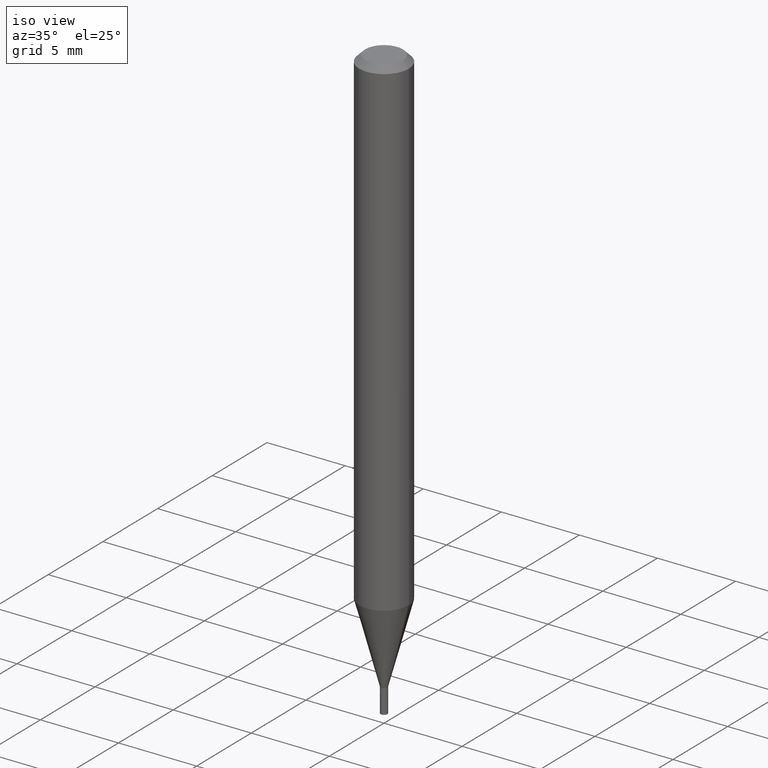
[diagram: clean part render]
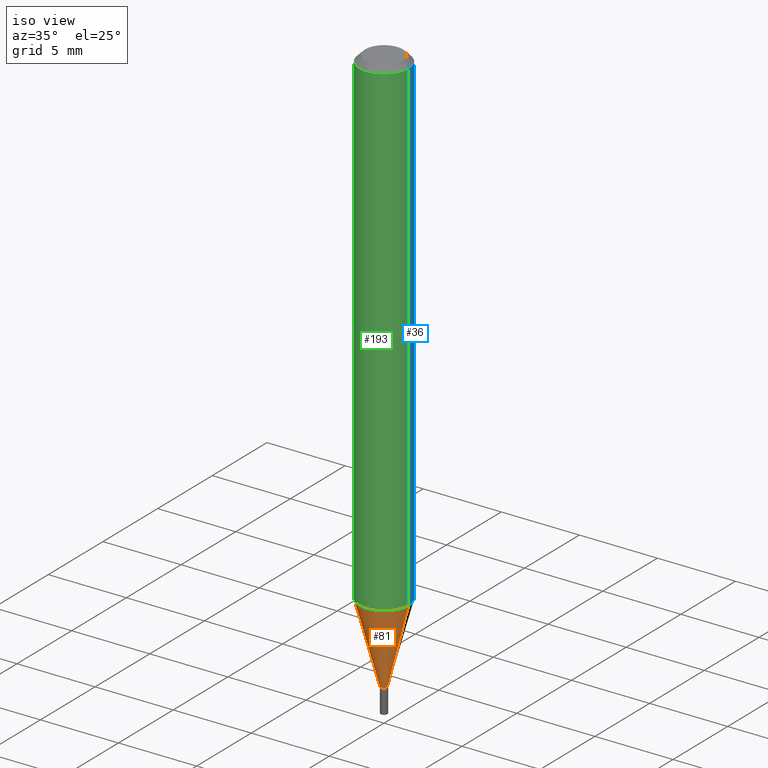
[diagram: same view with three faces highlighted in distinct colors, each labeled with its STEP entity id]
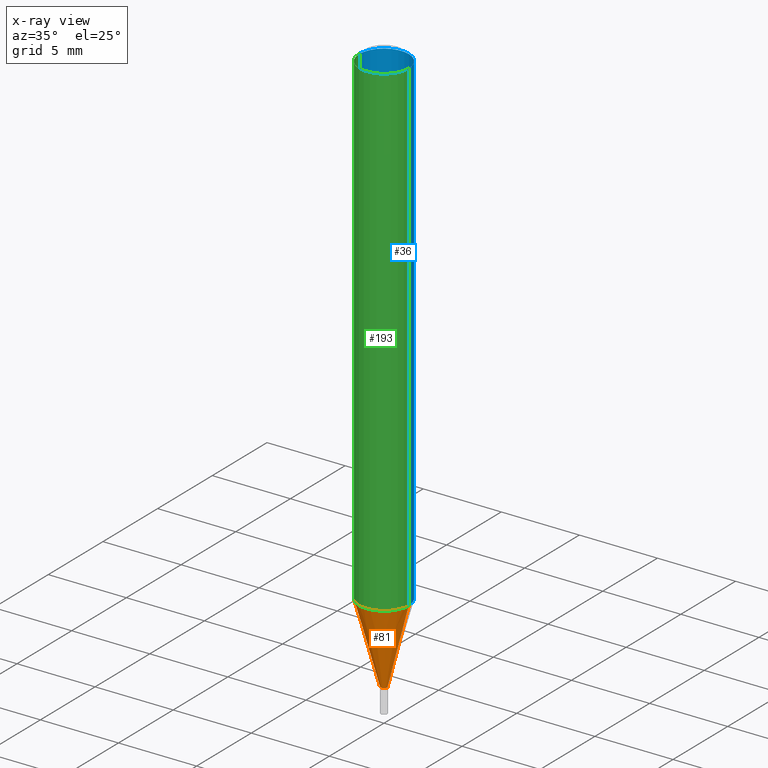
[diagram: x-ray of the same camera — body ghosted, the three highlighted faces saturated]
A machine part, iso view with three faces highlighted in distinct colors.
The next image is the same camera in x-ray (body ghosted, the three faces saturated) — at least one of them is partly hidden behind the body in this view.
Their STEP definitions:

[orange] entity #81 — the highlighted conical surface has half-angle 15 deg.
#11 = CIRCLE ( 'NONE', #381, 0.008499999999999922548 ) ;
#26 = VERTEX_POINT ( 'NONE', #272 ) ;
#46 = VERTEX_POINT ( 'NONE', #67 ) ;
#50 = EDGE_CURVE ( 'NONE', #26, #46, #407, .T. ) ;
#56 = CARTESIAN_POINT ( 'NONE',  ( -0.008499999999999922548, -4.963845514055678678E-15, -1.439000000000000057 ) ) ;
#67 = CARTESIAN_POINT ( 'NONE',  ( 0.06249999999999999306, -4.757035983437653502E-15, -1.237469256391281025 ) ) ;
#69 = LINE ( 'NONE', #160, #85 ) ;
#81 = ADVANCED_FACE ( 'NONE', ( #143 ), #258, .T. ) ;
#85 = VECTOR ( 'NONE', #215, 39.37007874015747433 ) ;
#86 = LINE ( 'NONE', #56, #370 ) ;
#110 = CARTESIAN_POINT ( 'NONE',  ( -0.008499999999999922548, -4.420178560143938947E-15, -1.439000000000000057 ) ) ;
#138 = ORIENTED_EDGE ( 'NONE', *, *, #195, .T. ) ;
#143 = FACE_OUTER_BOUND ( 'NONE', #373, .T. ) ;
#146 = DIRECTION ( 'NONE',  ( -0.2588190451025214611, 5.211531920934551042E-15, 0.9659258262890682012 ) ) ;
#149 = ORIENTED_EDGE ( 'NONE', *, *, #243, .T. ) ;
#160 = CARTESIAN_POINT ( 'NONE',  ( 0.008499999999999922548, -5.083596829355619552E-15, -1.439000000000000057 ) ) ;
#170 = AXIS2_PLACEMENT_3D ( 'NONE', #453, #177, #308 ) ;
#177 = DIRECTION ( 'NONE',  ( -2.445468806185136597E-29, 3.491481338843145583E-15, 1.000000000000000000 ) ) ;
#195 = EDGE_CURVE ( 'NONE', #217, #205, #11, .T. ) ;
#205 = VERTEX_POINT ( 'NONE', #433 ) ;
#208 = CARTESIAN_POINT ( 'NONE',  ( 3.519029612100411702E-29, -5.024241646595286853E-15, -1.439000000000000057 ) ) ;
#215 = DIRECTION ( 'NONE',  ( 0.2588190451025214611, 1.565188264969621573E-15, 0.9659258262890682012 ) ) ;
#217 = VERTEX_POINT ( 'NONE', #110 ) ;
#234 = ORIENTED_EDGE ( 'NONE', *, *, #335, .F. ) ;
#240 = DIRECTION ( 'NONE',  ( -2.445468806185136597E-29, 3.491481338843145583E-15, 1.000000000000000000 ) ) ;
#243 = EDGE_CURVE ( 'NONE', #205, #46, #69, .T. ) ;
#258 = CONICAL_SURFACE ( 'NONE', #360, 0.008499999999999922548, 0.2617993877991501295 ) ;
#272 = CARTESIAN_POINT ( 'NONE',  ( -0.06249999999999999306, -3.876511606232199217E-15, -1.237469256391281025 ) ) ;
#278 = DIRECTION ( 'NONE',  ( 1.000000000000000000, -6.982962677686225690E-15, 0.000000000000000000 ) ) ;
#290 = DIRECTION ( 'NONE',  ( 1.000000000000000000, -6.982962677686225690E-15, 0.000000000000000000 ) ) ;
#308 = DIRECTION ( 'NONE',  ( 1.000000000000000000, -6.982962677686262766E-15, 0.000000000000000000 ) ) ;
#317 = DIRECTION ( 'NONE',  ( -2.445468806185136597E-29, 3.491481338843145583E-15, 1.000000000000000000 ) ) ;
#335 = EDGE_CURVE ( 'NONE', #217, #26, #86, .T. ) ;
#360 = AXIS2_PLACEMENT_3D ( 'NONE', #208, #240, #278 ) ;
#370 = VECTOR ( 'NONE', #146, 39.37007874015747433 ) ;
#373 = EDGE_LOOP ( 'NONE', ( #234, #138, #149, #395 ) ) ;
#381 = AXIS2_PLACEMENT_3D ( 'NONE', #462, #317, #290 ) ;
#395 = ORIENTED_EDGE ( 'NONE', *, *, #50, .F. ) ;
#407 = CIRCLE ( 'NONE', #170, 0.06250000000000000000 ) ;
#433 = CARTESIAN_POINT ( 'NONE',  ( 0.008499999999999922548, -5.083596829355619552E-15, -1.439000000000000057 ) ) ;
#453 = CARTESIAN_POINT ( 'NONE',  ( 3.026192465117994899E-29, -4.320600816082261833E-15, -1.237469256391281025 ) ) ;
#462 = CARTESIAN_POINT ( 'NONE',  ( 3.519029612100411702E-29, -5.024241646595286853E-15, -1.439000000000000057 ) ) ;

[blue] entity #36 — the highlighted cylindrical surface (edge-blend (fillet) strip) has radius 1.5875 mm, axis along (-0, 0, 1).
#1 = ORIENTED_EDGE ( 'NONE', *, *, #111, .T. ) ;
#13 = EDGE_CURVE ( 'NONE', #108, #284, #264, .T. ) ;
#26 = VERTEX_POINT ( 'NONE', #272 ) ;
#27 = LINE ( 'NONE', #134, #130 ) ;
#28 = EDGE_CURVE ( 'NONE', #46, #26, #129, .T. ) ;
#29 = AXIS2_PLACEMENT_3D ( 'NONE', #375, #100, #64 ) ;
#36 = ADVANCED_FACE ( 'NONE', ( #63 ), #417, .T. ) ;
#46 = VERTEX_POINT ( 'NONE', #67 ) ;
#59 = CARTESIAN_POINT ( 'NONE',  ( 3.668203209277705088E-31, -5.237222008264718399E-17, -0.01499999999999999944 ) ) ;
#61 = AXIS2_PLACEMENT_3D ( 'NONE', #59, #95, #422 ) ;
#63 = FACE_OUTER_BOUND ( 'NONE', #158, .T. ) ;
#64 = DIRECTION ( 'NONE',  ( 1.000000000000000000, -6.982962677686266711E-15, 4.876176775795935793E-29 ) ) ;
#67 = CARTESIAN_POINT ( 'NONE',  ( 0.06249999999999999306, -4.757035983437653502E-15, -1.237469256391281025 ) ) ;
#73 = ORIENTED_EDGE ( 'NONE', *, *, #128, .F. ) ;
#77 = CARTESIAN_POINT ( 'NONE',  ( -0.06250000000000000000, -1.742397308232391840E-15, -0.01499999999999999944 ) ) ;
#95 = DIRECTION ( 'NONE',  ( -2.445468806185136597E-29, 3.491481338843145583E-15, 1.000000000000000000 ) ) ;
#100 = DIRECTION ( 'NONE',  ( -2.445468806185136597E-29, 3.491481338843145583E-15, 1.000000000000000000 ) ) ;
#108 = VERTEX_POINT ( 'NONE', #201 ) ;
#111 = EDGE_CURVE ( 'NONE', #26, #284, #140, .T. ) ;
#128 = EDGE_CURVE ( 'NONE', #46, #108, #27, .T. ) ;
#129 = CIRCLE ( 'NONE', #380, 0.06250000000000000000 ) ;
#130 = VECTOR ( 'NONE', #269, 39.37007874015748143 ) ;
#134 = CARTESIAN_POINT ( 'NONE',  ( 0.06250000000000000000, -4.364351673553916694E-16, 3.047610484872459871E-30 ) ) ;
#140 = LINE ( 'NONE', #314, #447 ) ;
#158 = EDGE_LOOP ( 'NONE', ( #315, #1, #429, #73 ) ) ;
#201 = CARTESIAN_POINT ( 'NONE',  ( 0.06250000000000000000, -4.888073874380388472E-16, -0.01499999999999999944 ) ) ;
#203 = CARTESIAN_POINT ( 'NONE',  ( 3.026192465117994899E-29, -4.320600816082261833E-15, -1.237469256391281025 ) ) ;
#210 = DIRECTION ( 'NONE',  ( -2.445468806185136877E-29, 3.491481338843145188E-15, 1.000000000000000000 ) ) ;
#232 = DIRECTION ( 'NONE',  ( -2.445468806185136597E-29, 3.491481338843145583E-15, 1.000000000000000000 ) ) ;
#264 = CIRCLE ( 'NONE', #61, 0.06250000000000000000 ) ;
#269 = DIRECTION ( 'NONE',  ( -2.445468806185136877E-29, 3.491481338843145188E-15, 1.000000000000000000 ) ) ;
#272 = CARTESIAN_POINT ( 'NONE',  ( -0.06249999999999999306, -3.876511606232199217E-15, -1.237469256391281025 ) ) ;
#284 = VERTEX_POINT ( 'NONE', #77 ) ;
#314 = CARTESIAN_POINT ( 'NONE',  ( -0.06250000000000000000, 4.440892098500626162E-16, -3.074334431409316114E-30 ) ) ;
#315 = ORIENTED_EDGE ( 'NONE', *, *, #28, .T. ) ;
#375 = CARTESIAN_POINT ( 'NONE',  ( 0.000000000000000000, 0.000000000000000000, 0.000000000000000000 ) ) ;
#380 = AXIS2_PLACEMENT_3D ( 'NONE', #203, #232, #419 ) ;
#417 = CYLINDRICAL_SURFACE ( 'NONE', #29, 0.06250000000000000000 ) ;
#419 = DIRECTION ( 'NONE',  ( 1.000000000000000000, -6.982962677686262766E-15, 0.000000000000000000 ) ) ;
#422 = DIRECTION ( 'NONE',  ( 1.000000000000000000, -6.982962677686266711E-15, 0.000000000000000000 ) ) ;
#429 = ORIENTED_EDGE ( 'NONE', *, *, #13, .F. ) ;
#447 = VECTOR ( 'NONE', #210, 39.37007874015748143 ) ;

[green] entity #193 — the highlighted cylindrical surface (edge-blend (fillet) strip) has radius 1.5875 mm, axis along (-0, 0, 1).
#18 = CARTESIAN_POINT ( 'NONE',  ( 3.668203209277705088E-31, -5.237222008264718399E-17, -0.01499999999999999944 ) ) ;
#26 = VERTEX_POINT ( 'NONE', #272 ) ;
#27 = LINE ( 'NONE', #134, #130 ) ;
#46 = VERTEX_POINT ( 'NONE', #67 ) ;
#50 = EDGE_CURVE ( 'NONE', #26, #46, #407, .T. ) ;
#67 = CARTESIAN_POINT ( 'NONE',  ( 0.06249999999999999306, -4.757035983437653502E-15, -1.237469256391281025 ) ) ;
#72 = DIRECTION ( 'NONE',  ( 1.000000000000000000, -6.982962677686266711E-15, 4.876176775795935793E-29 ) ) ;
#77 = CARTESIAN_POINT ( 'NONE',  ( -0.06250000000000000000, -1.742397308232391840E-15, -0.01499999999999999944 ) ) ;
#78 = ORIENTED_EDGE ( 'NONE', *, *, #427, .F. ) ;
#108 = VERTEX_POINT ( 'NONE', #201 ) ;
#111 = EDGE_CURVE ( 'NONE', #26, #284, #140, .T. ) ;
#121 = DIRECTION ( 'NONE',  ( -2.445468806185136597E-29, 3.491481338843145583E-15, 1.000000000000000000 ) ) ;
#128 = EDGE_CURVE ( 'NONE', #46, #108, #27, .T. ) ;
#130 = VECTOR ( 'NONE', #269, 39.37007874015748143 ) ;
#134 = CARTESIAN_POINT ( 'NONE',  ( 0.06250000000000000000, -4.364351673553916694E-16, 3.047610484872459871E-30 ) ) ;
#140 = LINE ( 'NONE', #314, #447 ) ;
#142 = AXIS2_PLACEMENT_3D ( 'NONE', #157, #325, #72 ) ;
#154 = ORIENTED_EDGE ( 'NONE', *, *, #128, .T. ) ;
#157 = CARTESIAN_POINT ( 'NONE',  ( 0.000000000000000000, 0.000000000000000000, 0.000000000000000000 ) ) ;
#170 = AXIS2_PLACEMENT_3D ( 'NONE', #453, #177, #308 ) ;
#177 = DIRECTION ( 'NONE',  ( -2.445468806185136597E-29, 3.491481338843145583E-15, 1.000000000000000000 ) ) ;
#193 = ADVANCED_FACE ( 'NONE', ( #386 ), #254, .T. ) ;
#201 = CARTESIAN_POINT ( 'NONE',  ( 0.06250000000000000000, -4.888073874380388472E-16, -0.01499999999999999944 ) ) ;
#210 = DIRECTION ( 'NONE',  ( -2.445468806185136877E-29, 3.491481338843145188E-15, 1.000000000000000000 ) ) ;
#226 = DIRECTION ( 'NONE',  ( 1.000000000000000000, -6.982962677686266711E-15, 0.000000000000000000 ) ) ;
#254 = CYLINDRICAL_SURFACE ( 'NONE', #142, 0.06250000000000000000 ) ;
#269 = DIRECTION ( 'NONE',  ( -2.445468806185136877E-29, 3.491481338843145188E-15, 1.000000000000000000 ) ) ;
#272 = CARTESIAN_POINT ( 'NONE',  ( -0.06249999999999999306, -3.876511606232199217E-15, -1.237469256391281025 ) ) ;
#284 = VERTEX_POINT ( 'NONE', #77 ) ;
#291 = ORIENTED_EDGE ( 'NONE', *, *, #111, .F. ) ;
#306 = AXIS2_PLACEMENT_3D ( 'NONE', #18, #121, #226 ) ;
#308 = DIRECTION ( 'NONE',  ( 1.000000000000000000, -6.982962677686262766E-15, 0.000000000000000000 ) ) ;
#314 = CARTESIAN_POINT ( 'NONE',  ( -0.06250000000000000000, 4.440892098500626162E-16, -3.074334431409316114E-30 ) ) ;
#325 = DIRECTION ( 'NONE',  ( -2.445468806185136597E-29, 3.491481338843145583E-15, 1.000000000000000000 ) ) ;
#352 = ORIENTED_EDGE ( 'NONE', *, *, #50, .T. ) ;
#372 = CIRCLE ( 'NONE', #306, 0.06250000000000000000 ) ;
#386 = FACE_OUTER_BOUND ( 'NONE', #434, .T. ) ;
#407 = CIRCLE ( 'NONE', #170, 0.06250000000000000000 ) ;
#427 = EDGE_CURVE ( 'NONE', #284, #108, #372, .T. ) ;
#434 = EDGE_LOOP ( 'NONE', ( #291, #352, #154, #78 ) ) ;
#447 = VECTOR ( 'NONE', #210, 39.37007874015748143 ) ;
#453 = CARTESIAN_POINT ( 'NONE',  ( 3.026192465117994899E-29, -4.320600816082261833E-15, -1.237469256391281025 ) ) ;